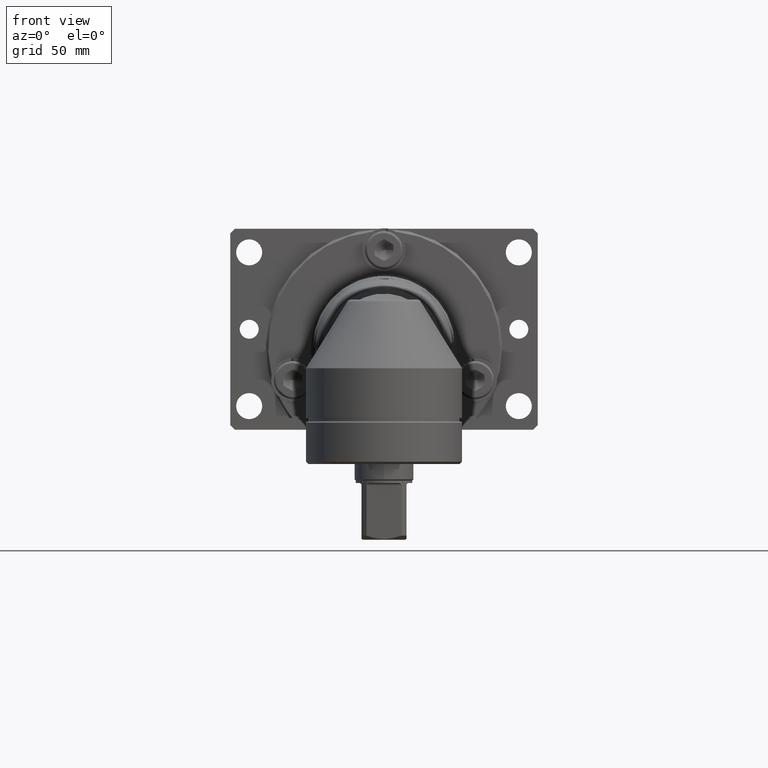
[diagram: clean part render]
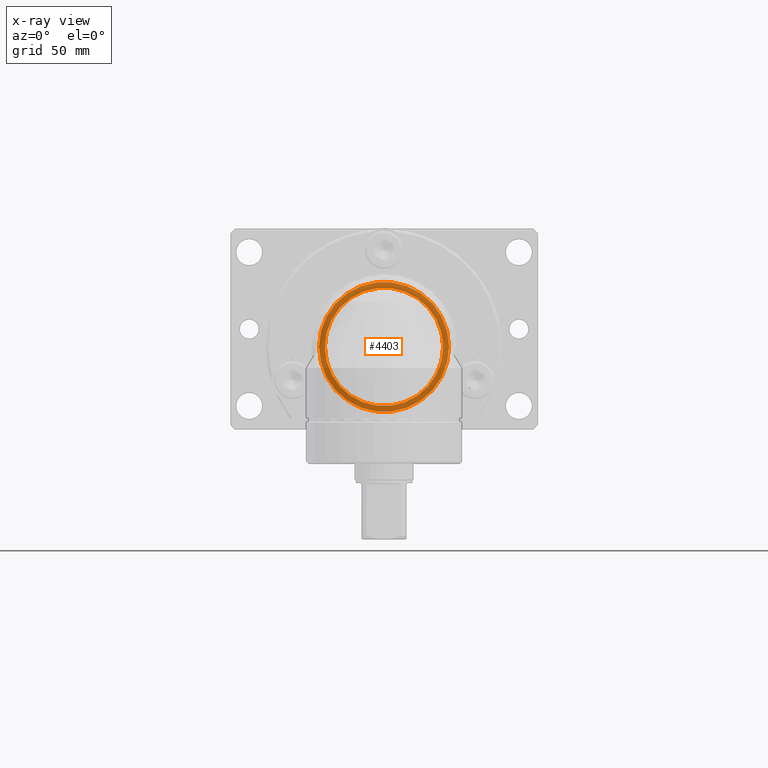
[diagram: x-ray — body ghosted, one internal face saturated and labeled with its STEP entity id]
A machine part, front view, then the same camera in x-ray: the body is ghosted and one INTERNAL B-rep face — a face not visible from any outside direction — is saturated and labeled: STEP entity #4403.
In plain terms, the highlighted planar face has unit normal (0, -1, 0).
Its self-contained STEP definition (entity closure, byte-faithful):
#702=FACE_BOUND('',#1079,.T.);
#812=FACE_OUTER_BOUND('',#1078,.T.);
#1078=EDGE_LOOP('',(#3258,#3259));
#1079=EDGE_LOOP('',(#3260,#3261));
#1412=CIRCLE('',#4789,27.5);
#1413=CIRCLE('',#4790,27.5);
#1414=CIRCLE('',#4791,25.);
#1415=CIRCLE('',#4792,25.);
#1827=VERTEX_POINT('',#8114);
#1828=VERTEX_POINT('',#8115);
#1829=VERTEX_POINT('',#8118);
#1830=VERTEX_POINT('',#8119);
#2357=EDGE_CURVE('',#1827,#1828,#1412,.T.);
#2358=EDGE_CURVE('',#1828,#1827,#1413,.T.);
#2359=EDGE_CURVE('',#1829,#1830,#1414,.T.);
#2360=EDGE_CURVE('',#1830,#1829,#1415,.T.);
#3258=ORIENTED_EDGE('',*,*,#2357,.T.);
#3259=ORIENTED_EDGE('',*,*,#2358,.T.);
#3260=ORIENTED_EDGE('',*,*,#2359,.F.);
#3261=ORIENTED_EDGE('',*,*,#2360,.F.);
#4232=PLANE('',#4788);
#4403=ADVANCED_FACE('',(#812,#702),#4232,.F.);
#4788=AXIS2_PLACEMENT_3D('',#8113,#5650,#5651);
#4789=AXIS2_PLACEMENT_3D('',#8116,#5652,#5653);
#4790=AXIS2_PLACEMENT_3D('',#8117,#5654,#5655);
#4791=AXIS2_PLACEMENT_3D('',#8120,#5656,#5657);
#4792=AXIS2_PLACEMENT_3D('',#8121,#5658,#5659);
#5650=DIRECTION('center_axis',(3.26160557569231E-16,-1.,1.88737914186277E-15));
#5651=DIRECTION('ref_axis',(-1.73472347597682E-16,1.88737914186277E-15,
1.));
#5652=DIRECTION('center_axis',(-3.26160557569231E-16,1.,-1.88737914186277E-15));
#5653=DIRECTION('ref_axis',(1.73472347597682E-16,-1.88737914186277E-15,
-1.));
#5654=DIRECTION('center_axis',(-3.26160557569231E-16,1.,-1.88737914186277E-15));
#5655=DIRECTION('ref_axis',(1.73472347597682E-16,-1.88737914186277E-15,
-1.));
#5656=DIRECTION('center_axis',(-3.26160557569231E-16,1.,-1.88737914186277E-15));
#5657=DIRECTION('ref_axis',(1.73472347597682E-16,-1.88737914186277E-15,
-1.));
#5658=DIRECTION('center_axis',(-3.26160557569231E-16,1.,-1.88737914186277E-15));
#5659=DIRECTION('ref_axis',(1.73472347597682E-16,-1.88737914186277E-15,
-1.));
#8113=CARTESIAN_POINT('Origin',(-27.5,193.499999999999,-3.69978353509382E-13));
#8114=CARTESIAN_POINT('',(-27.5,193.499999999999,-3.69978353509382E-13));
#8115=CARTESIAN_POINT('',(27.5,193.499999999999,-3.63805153089164E-13));
#8116=CARTESIAN_POINT('Origin',(-2.20788251177336E-14,193.499999999999,
-3.65207863950445E-13));
#8117=CARTESIAN_POINT('Origin',(-2.20788251177336E-14,193.499999999999,
-3.65207863950445E-13));
#8118=CARTESIAN_POINT('',(-25.,193.499999999999,-3.69544672640387E-13));
#8119=CARTESIAN_POINT('',(25.,193.499999999999,-3.63932672258372E-13));
#8120=CARTESIAN_POINT('Origin',(-2.20788251177336E-14,193.499999999999,
-3.65207863950445E-13));
#8121=CARTESIAN_POINT('Origin',(-2.20788251177336E-14,193.499999999999,
-3.65207863950445E-13));